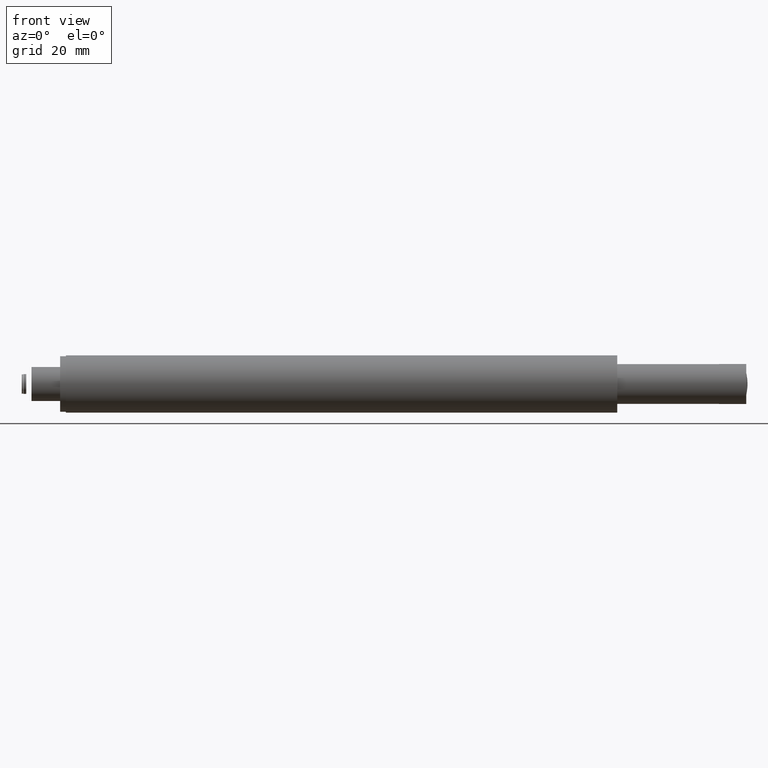
[diagram: clean part render]
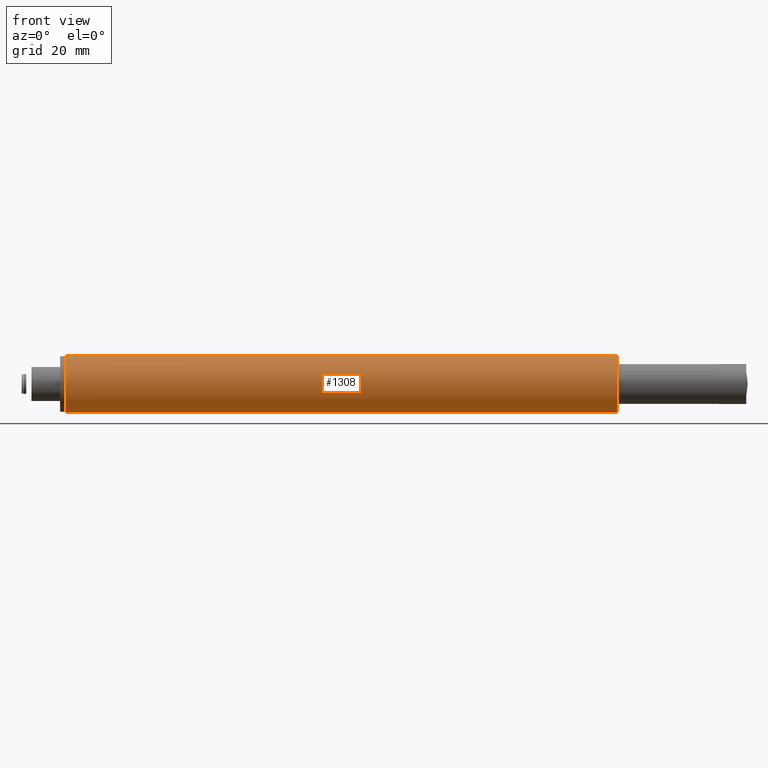
[diagram: same view with one face highlighted and labeled with its STEP entity id]
A machine part, front view. The second image highlights one B-rep face of the part: STEP entity #1308.
In plain terms, the highlighted cylindrical surface (bore or boss wall) has radius 10 mm, axis along (1, 0, 0).
Its self-contained STEP definition (entity closure, byte-faithful):
#36 = CIRCLE ( 'NONE', #3656, 9.999999999999987566 ) ;
#116 = EDGE_LOOP ( 'NONE', ( #700 ) ) ;
#135 = CARTESIAN_POINT ( 'NONE',  ( -322.9054818016120976, -88.40462048150591556, -2.190669417726132445E-14 ) ) ;
#218 = CYLINDRICAL_SURFACE ( 'NONE', #2547, 9.999999999999987566 ) ;
#259 = VERTEX_POINT ( 'NONE', #1806 ) ;
#282 = AXIS2_PLACEMENT_3D ( 'NONE', #2642, #2688, #4179 ) ;
#463 = EDGE_CURVE ( 'NONE', #903, #903, #1364, .T. ) ;
#700 = ORIENTED_EDGE ( 'NONE', *, *, #463, .T. ) ;
#903 = VERTEX_POINT ( 'NONE', #2048 ) ;
#1308 = ADVANCED_FACE ( 'NONE', ( #1678, #3488 ), #218, .T. ) ;
#1364 = CIRCLE ( 'NONE', #282, 9.999999999999987566 ) ;
#1582 = EDGE_CURVE ( 'NONE', #259, #259, #36, .T. ) ;
#1678 = FACE_OUTER_BOUND ( 'NONE', #116, .T. ) ;
#1805 = CARTESIAN_POINT ( 'NONE',  ( -322.9054818016120976, -88.40462048150591556, -2.190669417726132445E-14 ) ) ;
#1806 = CARTESIAN_POINT ( 'NONE',  ( -322.9054818016120976, -88.40462048150591556, -10.00000000000001066 ) ) ;
#2048 = CARTESIAN_POINT ( 'NONE',  ( -130.1054818016120862, -88.40462048150591556, -10.00000000000001066 ) ) ;
#2188 = DIRECTION ( 'NONE',  ( 0.000000000000000000, 0.000000000000000000, -1.000000000000000000 ) ) ;
#2527 = EDGE_LOOP ( 'NONE', ( #4388 ) ) ;
#2547 = AXIS2_PLACEMENT_3D ( 'NONE', #135, #4641, #4296 ) ;
#2642 = CARTESIAN_POINT ( 'NONE',  ( -130.1054818016120862, -88.40462048150591556, -2.190669417726132445E-14 ) ) ;
#2688 = DIRECTION ( 'NONE',  ( -1.000000000000000000, -0.000000000000000000, -0.000000000000000000 ) ) ;
#2920 = DIRECTION ( 'NONE',  ( 1.000000000000000000, 0.000000000000000000, 0.000000000000000000 ) ) ;
#3488 = FACE_OUTER_BOUND ( 'NONE', #2527, .T. ) ;
#3656 = AXIS2_PLACEMENT_3D ( 'NONE', #1805, #2920, #2188 ) ;
#4179 = DIRECTION ( 'NONE',  ( 0.000000000000000000, 0.000000000000000000, -1.000000000000000000 ) ) ;
#4296 = DIRECTION ( 'NONE',  ( 0.000000000000000000, 0.000000000000000000, -1.000000000000000000 ) ) ;
#4388 = ORIENTED_EDGE ( 'NONE', *, *, #1582, .T. ) ;
#4641 = DIRECTION ( 'NONE',  ( 1.000000000000000000, 0.000000000000000000, 0.000000000000000000 ) ) ;